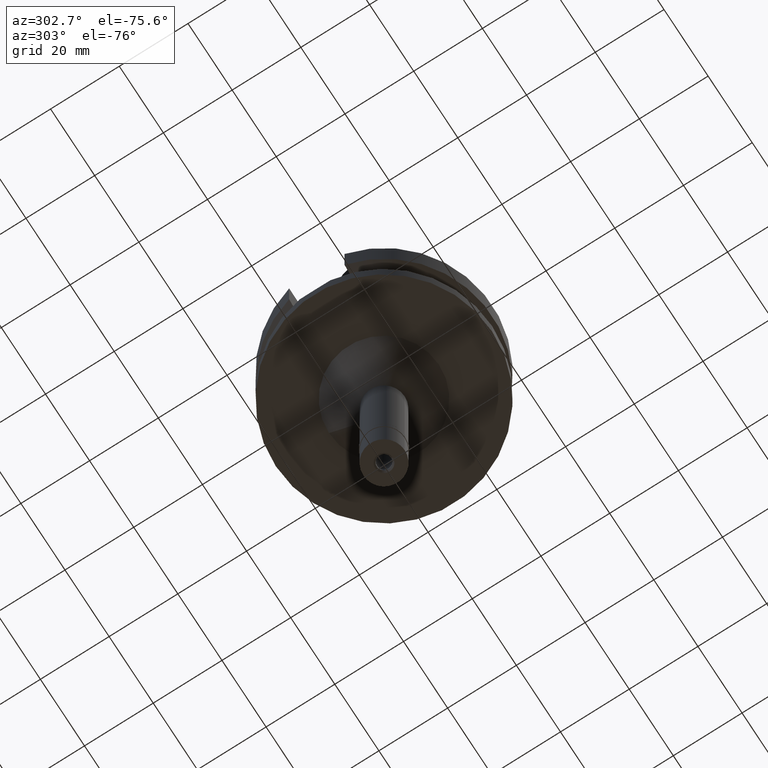
[diagram: clean part render]
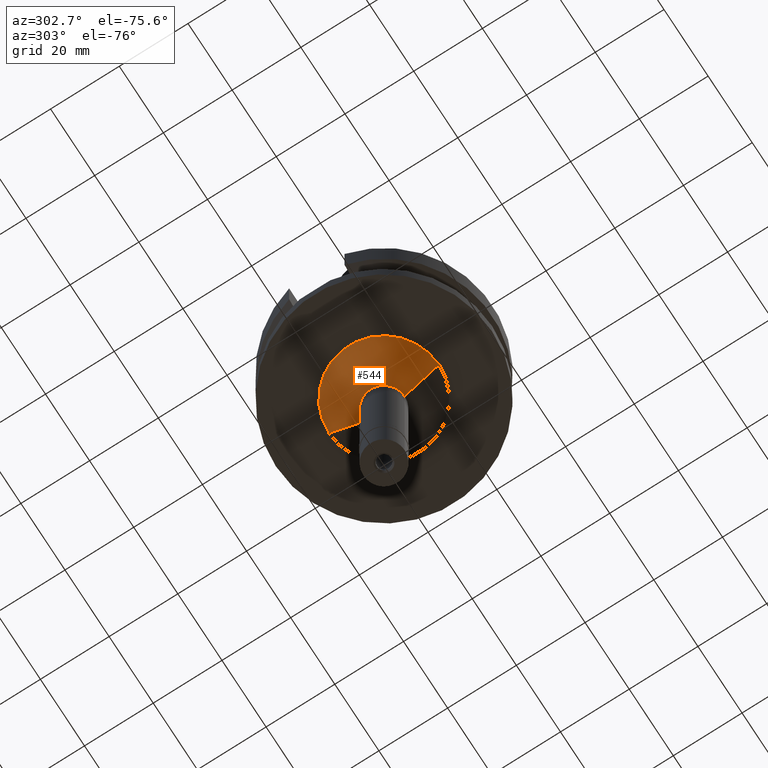
[diagram: same view with one face highlighted and labeled with its STEP entity id]
A machine part, auxiliary view. The second image highlights one B-rep face of the part: STEP entity #544.
In plain terms, the highlighted conical surface has half-angle 45 deg.
Its self-contained STEP definition (entity closure, byte-faithful):
#50 = AXIS2_PLACEMENT_3D ( 'NONE', #838, #390, #193 ) ;
#193 = DIRECTION ( 'NONE',  ( 0.0000000000000000000, 1.000000000000000000, 0.0000000000000000000 ) ) ;
#271 = LINE ( 'NONE', #2740, #897 ) ;
#390 = DIRECTION ( 'NONE',  ( 0.0000000000000000000, 0.0000000000000000000, 1.000000000000000000 ) ) ;
#419 = ORIENTED_EDGE ( 'NONE', *, *, #1847, .T. ) ;
#513 = VERTEX_POINT ( 'NONE', #1079 ) ;
#544 = ADVANCED_FACE ( 'NONE', ( #2648 ), #1766, .T. ) ;
#557 = VERTEX_POINT ( 'NONE', #615 ) ;
#611 = DIRECTION ( 'NONE',  ( 0.0000000000000000000, 0.7071067811865474617, -0.7071067811865474617 ) ) ;
#615 = CARTESIAN_POINT ( 'NONE',  ( 0.0000000000000000000, -16.00000000000000000, -27.00000000000000000 ) ) ;
#727 = DIRECTION ( 'NONE',  ( 0.0000000000000000000, -0.7071067811865474617, -0.7071067811865474617 ) ) ;
#798 = EDGE_CURVE ( 'NONE', #513, #2823, #851, .T. ) ;
#838 = CARTESIAN_POINT ( 'NONE',  ( 0.0000000000000000000, 0.0000000000000000000, -32.00000000000000000 ) ) ;
#851 = CIRCLE ( 'NONE', #1369, 6.000000000000000000 ) ;
#868 = ORIENTED_EDGE ( 'NONE', *, *, #1932, .T. ) ;
#897 = VECTOR ( 'NONE', #727, 1000.000000000000114 ) ;
#909 = EDGE_CURVE ( 'NONE', #557, #513, #1741, .T. ) ;
#1045 = DIRECTION ( 'NONE',  ( 0.0000000000000000000, 0.0000000000000000000, -1.000000000000000000 ) ) ;
#1079 = CARTESIAN_POINT ( 'NONE',  ( 0.0000000000000000000, -6.000000000000000000, -37.00000000000000000 ) ) ;
#1128 = VERTEX_POINT ( 'NONE', #2268 ) ;
#1369 = AXIS2_PLACEMENT_3D ( 'NONE', #2392, #1045, #1729 ) ;
#1445 = ORIENTED_EDGE ( 'NONE', *, *, #909, .F. ) ;
#1517 = AXIS2_PLACEMENT_3D ( 'NONE', #1540, #2433, #2214 ) ;
#1540 = CARTESIAN_POINT ( 'NONE',  ( 0.0000000000000000000, 0.0000000000000000000, -27.00000000000000000 ) ) ;
#1691 = EDGE_LOOP ( 'NONE', ( #1760, #1445, #419, #868 ) ) ;
#1729 = DIRECTION ( 'NONE',  ( 0.0000000000000000000, -1.000000000000000000, 0.0000000000000000000 ) ) ;
#1741 = LINE ( 'NONE', #2614, #1884 ) ;
#1760 = ORIENTED_EDGE ( 'NONE', *, *, #798, .F. ) ;
#1766 = CONICAL_SURFACE ( 'NONE', #50, 11.00000000000000000, 0.7853981633972997312 ) ;
#1847 = EDGE_CURVE ( 'NONE', #557, #1128, #2767, .T. ) ;
#1884 = VECTOR ( 'NONE', #611, 1000.000000000000114 ) ;
#1932 = EDGE_CURVE ( 'NONE', #1128, #2823, #271, .T. ) ;
#2214 = DIRECTION ( 'NONE',  ( 0.0000000000000000000, -1.000000000000000000, 0.0000000000000000000 ) ) ;
#2268 = CARTESIAN_POINT ( 'NONE',  ( 0.0000000000000000000, 16.00000000000000000, -27.00000000000000000 ) ) ;
#2392 = CARTESIAN_POINT ( 'NONE',  ( 0.0000000000000000000, 0.0000000000000000000, -37.00000000000000000 ) ) ;
#2433 = DIRECTION ( 'NONE',  ( 0.0000000000000000000, 0.0000000000000000000, -1.000000000000000000 ) ) ;
#2508 = CARTESIAN_POINT ( 'NONE',  ( 0.0000000000000000000, 6.000000000000000000, -37.00000000000000000 ) ) ;
#2614 = CARTESIAN_POINT ( 'NONE',  ( 0.0000000000000000000, -16.00000000000000000, -27.00000000000000000 ) ) ;
#2648 = FACE_OUTER_BOUND ( 'NONE', #1691, .T. ) ;
#2740 = CARTESIAN_POINT ( 'NONE',  ( 0.0000000000000000000, 16.00000000000000000, -27.00000000000000000 ) ) ;
#2767 = CIRCLE ( 'NONE', #1517, 16.00000000000000000 ) ;
#2823 = VERTEX_POINT ( 'NONE', #2508 ) ;